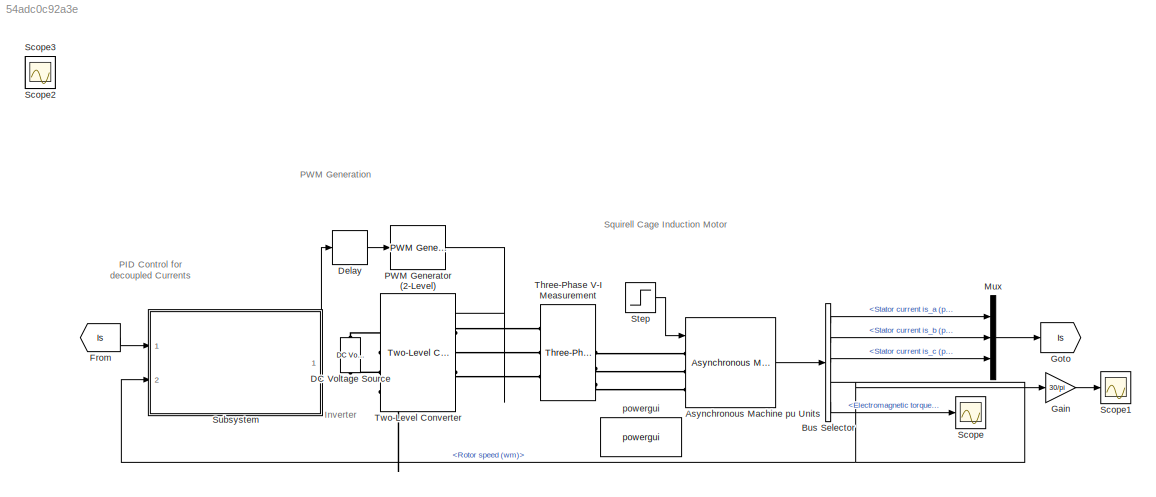
MODEL slx_54adc0c92a3e
KIND model
CONFIG AbsTol = auto
CONFIG EnableMultiTasking = off
CONFIG FixedStep = auto
CONFIG MaxStep = 1e-4
CONFIG MinStep = auto
CONFIG RelTol = 1e-3
CONFIG SampleTimeConstraint = Unconstrained
CONFIG SolverName = VariableStepAuto
CONFIG StartTime = 0.0
CONFIG StopTime = 2
BLOCK [Reference] Asynchronous Machine pu Units  REF=powerlib/Machines/Asynchronous Machine
pu Units
  Ports = [1, 1, 0, 0, 0, 3]
  SourceBlock = powerlib/Machines/Asynchronous Machine\npu Units
  SourceProductBaseCode = PS
  SourceType = Asynchronous Machine
BLOCK [BusSelector] Bus Selector
  OutputSignals = Stator measurements.Stator current is_a (pu),Stator measurements.Stator current is_b (pu),Stator measurements.Stator current is_c (pu),Mechanical.Rotor speed (wm),Mechanical.Electromagnetic torque Te (pu)
  Ports = [1, 5]
BLOCK [Reference] DC Voltage Source  REF=powerlib/Electrical
Sources/DC Voltage Source
  NameLocation = left
  Ports = [0, 0, 0, 0, 0, 1, 1]
  SourceBlock = powerlib/Electrical\nSources/DC Voltage Source
  SourceProductBaseCode = PS
  SourceType = DC Voltage Source
BLOCK [Delay] Delay
  InputPortMap = u0
  Ports = [1, 1]
BLOCK [From] From
  GotoTag = Is
BLOCK [Gain] Gain
  Gain = 30/pi
BLOCK [Goto] Goto
  GotoTag = Is
BLOCK [Mux] Mux
  DisplayOption = bar
  Inputs = 3
  Ports = [3, 1]
BLOCK [Reference] PWM Generator (2-Level)  REF=powerlib_meascontrol/Pulse & Signal
Generators/PWM Generator
(2-Level)
  Ports = [1, 1]
  SourceBlock = powerlib_meascontrol/Pulse & Signal\nGenerators/PWM Generator\n(2-Level)
  SourceProductBaseCode = PS
  SourceType = PWM Generator (2-Level)
BLOCK [Scope] Scope
  Floating = off
  NumInputPorts = 1
  Ports = [1]
  ScopeSpecificationString = Simulink.scopes.TimeScopeBlockCfg('CurrentConfiguration', extmgr.ConfigurationSet(extmgr.Configuration('Core','General UI',true),extmgr.Configuration('Core','Source UI',true),extmgr.Configuration('Sources','WiredSimulink',true),extmgr.Configuration('Visuals','Time Domain',true),extmgr.Configuration('Tools','Plot Navigation',true),extmgr.Configuration('Tools','Measurements',true)),'Version','2020b'...<+1ch>
BLOCK [Scope] Scope1
  Floating = off
  NumInputPorts = 1
  Ports = [1]
  ScopeSpecificationString = Simulink.scopes.TimeScopeBlockCfg('CurrentConfiguration', extmgr.ConfigurationSet(extmgr.Configuration('Core','General UI',true),extmgr.Configuration('Core','Source UI',true),extmgr.Configuration('Sources','WiredSimulink',true,'DataLoggingVariableName','ScopeData1'),extmgr.Configuration('Visuals','Time Domain',true),extmgr.Configuration('Tools','Plot Navigation',true),extmgr.Configuration('Tools',...<+40ch>
BLOCK [Scope] Scope2
  Floating = off
  IOType = viewer
  NumInputPorts = 1
  Ports = []
  ScopeSpecificationString = Simulink.scopes.TimeScopeBlockCfg('CurrentConfiguration', extmgr.ConfigurationSet(extmgr.Configuration('Core','General UI',true),extmgr.Configuration('Core','Source UI',true),extmgr.Configuration('Sources','WiredSimulink',true,'DataLoggingVariableName','ScopeData2'),extmgr.Configuration('Visuals','Time Domain',true,'SerializedDisplays',{struct('MinYLimReal','-19.63496','MaxYLimReal','176.71459','Y...<+1440ch>
BLOCK [Scope] Scope3
  Floating = off
  IOType = viewer
  NumInputPorts = 1
  Ports = []
  ScopeSpecificationString = Simulink.scopes.TimeScopeBlockCfg('CurrentConfiguration', extmgr.ConfigurationSet(extmgr.Configuration('Core','General UI',true),extmgr.Configuration('Core','Source UI',true),extmgr.Configuration('Sources','WiredSimulink',true,'DataLoggingVariableName','ScopeData3'),extmgr.Configuration('Visuals','Time Domain',true,'SerializedDisplays',{struct('MinYLimReal','-1.32424','MaxYLimReal','1.2094','YLabe...<+3012ch>
BLOCK [Step] Step
  After = 26
  SampleTime = 0
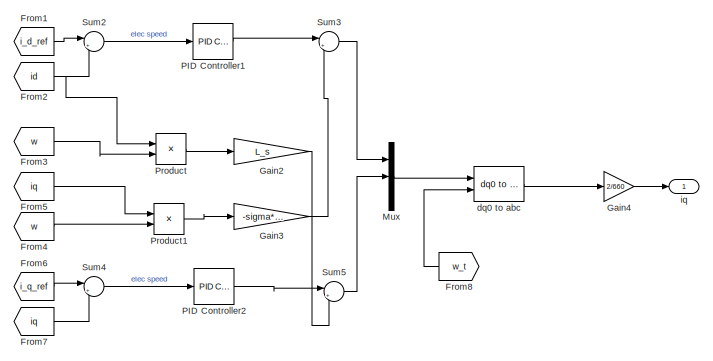
[diagram: Subsystem - part 1/2, middle right region]
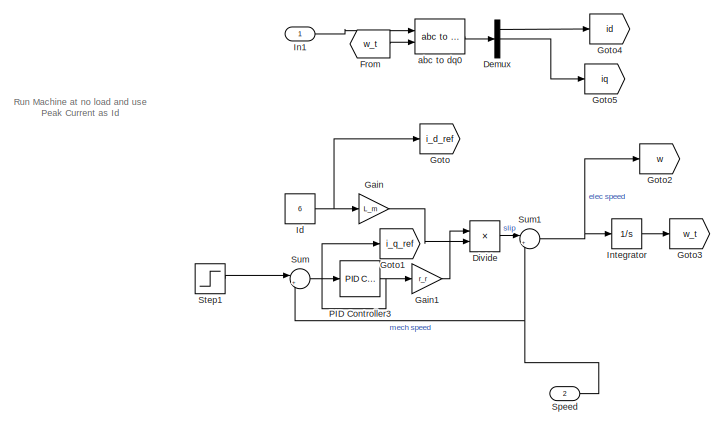
[diagram: Subsystem - part 2/2, left side, full height]
BLOCK [SubSystem] Subsystem
  Ports = [2, 1]
  RequestExecContextInheritance = off
BLOCK [Demux] Subsystem/Demux
  Outputs = 3
  Ports = [1, 3]
BLOCK [Product] Subsystem/Divide
  Inputs = */
  Ports = [2, 1]
BLOCK [From] Subsystem/From
  GotoTag = w_t
BLOCK [From] Subsystem/From1
  GotoTag = i_d_ref
BLOCK [From] Subsystem/From2
  GotoTag = id
BLOCK [From] Subsystem/From3
  GotoTag = w
BLOCK [From] Subsystem/From4
  GotoTag = w
BLOCK [From] Subsystem/From5
  GotoTag = iq
BLOCK [From] Subsystem/From6
  GotoTag = i_q_ref
BLOCK [From] Subsystem/From7
  GotoTag = iq
BLOCK [From] Subsystem/From8
  GotoTag = w_t
  NameLocation = top
BLOCK [Gain] Subsystem/Gain
  Gain = L_m
BLOCK [Gain] Subsystem/Gain1
  Gain = r_r
BLOCK [Gain] Subsystem/Gain2
  Gain = L_s
BLOCK [Gain] Subsystem/Gain3
  Gain = -sigma*L_s
BLOCK [Gain] Subsystem/Gain4
  Gain = 2/660
BLOCK [Goto] Subsystem/Goto
  GotoTag = i_d_ref
BLOCK [Goto] Subsystem/Goto1
  GotoTag = i_q_ref
BLOCK [Goto] Subsystem/Goto2
  GotoTag = w
BLOCK [Goto] Subsystem/Goto3
  GotoTag = w_t
BLOCK [Goto] Subsystem/Goto4
  GotoTag = id
BLOCK [Goto] Subsystem/Goto5
  GotoTag = iq
BLOCK [Constant] Subsystem/Id
  Value = 6
BLOCK [Inport] Subsystem/In1
BLOCK [Integrator] Subsystem/Integrator
  Ports = [1, 1]
BLOCK [Mux] Subsystem/Mux
  DisplayOption = bar
  Inputs = 3
  Ports = [3, 1]
BLOCK [Reference] Subsystem/PID Controller1  REF=pid_lib/PID Controller
  Ports = [1, 1]
  SourceBlock = pid_lib/PID Controller
  SourceProductBaseCode = SL
  SourceType = PID 1dof
BLOCK [Reference] Subsystem/PID Controller2  REF=pid_lib/PID Controller
  Ports = [1, 1]
  SourceBlock = pid_lib/PID Controller
  SourceProductBaseCode = SL
  SourceType = PID 1dof
BLOCK [Reference] Subsystem/PID Controller3  REF=pid_lib/PID Controller
  Ports = [1, 1]
  SourceBlock = pid_lib/PID Controller
  SourceProductBaseCode = SL
  SourceType = PID 1dof
BLOCK [Product] Subsystem/Product
  Ports = [2, 1]
BLOCK [Product] Subsystem/Product1
  Ports = [2, 1]
BLOCK [Inport] Subsystem/Speed
  Port = 2
BLOCK [Step] Subsystem/Step1
  After = 1500*pi/30
  SampleTime = 0
  Time = 0.2
BLOCK [Sum] Subsystem/Sum
  Inputs = |++
  Ports = [2, 1]
BLOCK [Sum] Subsystem/Sum1
  Inputs = |++
  Ports = [2, 1]
BLOCK [Sum] Subsystem/Sum2
  Inputs = |+-
  Ports = [2, 1]
BLOCK [Sum] Subsystem/Sum3
  Inputs = |++
  Ports = [2, 1]
BLOCK [Sum] Subsystem/Sum4
  Inputs = |+-
  Ports = [2, 1]
BLOCK [Sum] Subsystem/Sum5
  Inputs = |++
  Ports = [2, 1]
BLOCK [Reference] Subsystem/abc to dq0  REF=powerlib_meascontrol/Transformations/abc to dq0
  Ports = [2, 1]
  SourceBlock = powerlib_meascontrol/Transformations/abc to dq0
  SourceProductBaseCode = PS
  SourceType = abc to dq0 Transformation
BLOCK [Reference] Subsystem/dq0 to abc  REF=powerlib_meascontrol/Transformations/dq0 to abc
  Ports = [2, 1]
  SourceBlock = powerlib_meascontrol/Transformations/dq0 to abc
  SourceProductBaseCode = PS
  SourceType = dq0 to abc Transformation
BLOCK [Outport] Subsystem/iq
BLOCK [Reference] Three-Phase V-I Measurement  REF=powerlib/Measurements/Three-Phase
V-I Measurement
  Ports = [0, 2, 0, 0, 0, 3, 3]
  SourceBlock = powerlib/Measurements/Three-Phase\nV-I Measurement
  SourceProductBaseCode = PS
  SourceType = Three-Phase VI Measurement
BLOCK [Reference] Two-Level Converter  REF=powerlib/Power
Electronics/Two-Level Converter
  NameLocation = top
  Ports = [2, 0, 0, 0, 0, 3, 2]
  SourceBlock = powerlib/Power\nElectronics/Two-Level Converter
  SourceProductBaseCode = PS
  SourceType = Two-Level Converter
BLOCK [Reference] powergui  REF=powerlib/powergui
  Ports = []
  Priority = 1
  SourceBlock = powerlib/powergui
  SourceProductBaseCode = PS
  SourceType = PSB option menu block
ANNOTATION (root): Inverter
ANNOTATION (root): PID Control for decoupled Currents
ANNOTATION (root): PWM Generation
ANNOTATION (root): Squirell Cage Induction Motor
ANNOTATION Subsystem: Run Machine at no load and use Peak Current as Id
LINE Asynchronous Machine pu Units:1 -> Bus Selector:1
LINE Bus Selector:1 -> Mux:1
LINE Bus Selector:2 -> Mux:2
LINE Bus Selector:3 -> Mux:3
NET Bus Selector:4 -> Gain:1, Subsystem:2
LINE Bus Selector:5 -> Scope:1
LINE Delay:1 -> PWM Generator (2-Level):1
LINE From:1 -> Subsystem:1
LINE Gain:1 -> Scope1:1
LINE Mux:1 -> Goto:1
LINE PWM Generator (2-Level):1 -> Two-Level Converter:1
LINE Step:1 -> Asynchronous Machine pu Units:1
LINE Subsystem/Demux:1 -> Subsystem/Goto4:1
LINE Subsystem/Demux:2 -> Subsystem/Goto5:1
LINE Subsystem/Divide:1 -> Subsystem/Sum1:1
LINE Subsystem/From1:1 -> Subsystem/Sum2:1
NET Subsystem/From2:1 -> Subsystem/Product:1, Subsystem/Sum2:2
LINE Subsystem/From3:1 -> Subsystem/Product:2
LINE Subsystem/From4:1 -> Subsystem/Product1:2
LINE Subsystem/From5:1 -> Subsystem/Product1:1
LINE Subsystem/From6:1 -> Subsystem/Sum4:1
LINE Subsystem/From7:1 -> Subsystem/Sum4:2
LINE Subsystem/From8:1 -> Subsystem/dq0 to abc:2
LINE Subsystem/From:1 -> Subsystem/abc to dq0:2
LINE Subsystem/Gain1:1 -> Subsystem/Divide:1
LINE Subsystem/Gain2:1 -> Subsystem/Sum5:2
LINE Subsystem/Gain3:1 -> Subsystem/Sum3:2
LINE Subsystem/Gain4:1 -> Subsystem/iq:1
LINE Subsystem/Gain:1 -> Subsystem/Divide:2
NET Subsystem/Id:1 -> Subsystem/Gain:1, Subsystem/Goto:1
LINE Subsystem/In1:1 -> Subsystem/abc to dq0:1
LINE Subsystem/Integrator:1 -> Subsystem/Goto3:1
LINE Subsystem/Mux:1 -> Subsystem/dq0 to abc:1
LINE Subsystem/PID Controller1:1 -> Subsystem/Sum3:1
LINE Subsystem/PID Controller2:1 -> Subsystem/Sum5:1
NET Subsystem/PID Controller3:1 -> Subsystem/Gain1:1, Subsystem/Goto1:1
LINE Subsystem/Product1:1 -> Subsystem/Gain3:1
LINE Subsystem/Product:1 -> Subsystem/Gain2:1
NET Subsystem/Speed:1 -> Subsystem/Sum1:2, Subsystem/Sum:2
LINE Subsystem/Step1:1 -> Subsystem/Sum:1
NET Subsystem/Sum1:1 -> Subsystem/Goto2:1, Subsystem/Integrator:1
LINE Subsystem/Sum2:1 -> Subsystem/PID Controller1:1
LINE Subsystem/Sum3:1 -> Subsystem/Mux:1
LINE Subsystem/Sum4:1 -> Subsystem/PID Controller2:1
LINE Subsystem/Sum5:1 -> Subsystem/Mux:2
LINE Subsystem/Sum:1 -> Subsystem/PID Controller3:1
LINE Subsystem/abc to dq0:1 -> Subsystem/Demux:1
LINE Subsystem/dq0 to abc:1 -> Subsystem/Gain4:1
LINE Subsystem:1 -> Delay:1
PLINE Asynchronous Machine pu Units:LConn1 -- Three-Phase V-I Measurement:RConn1
PLINE Asynchronous Machine pu Units:LConn2 -- Three-Phase V-I Measurement:RConn2
PLINE Asynchronous Machine pu Units:LConn3 -- Three-Phase V-I Measurement:RConn3
PLINE DC Voltage Source:LConn1 -- Two-Level Converter:RConn2
PLINE DC Voltage Source:RConn1 -- Two-Level Converter:RConn1
PLINE Three-Phase V-I Measurement:LConn1 -- Two-Level Converter:LConn1
PLINE Three-Phase V-I Measurement:LConn2 -- Two-Level Converter:LConn2
PLINE Three-Phase V-I Measurement:LConn3 -- Two-Level Converter:LConn3
note: NET lines group one-source signal fan-out (src -> all destinations, sorted); 1:1 wires keep LINE
